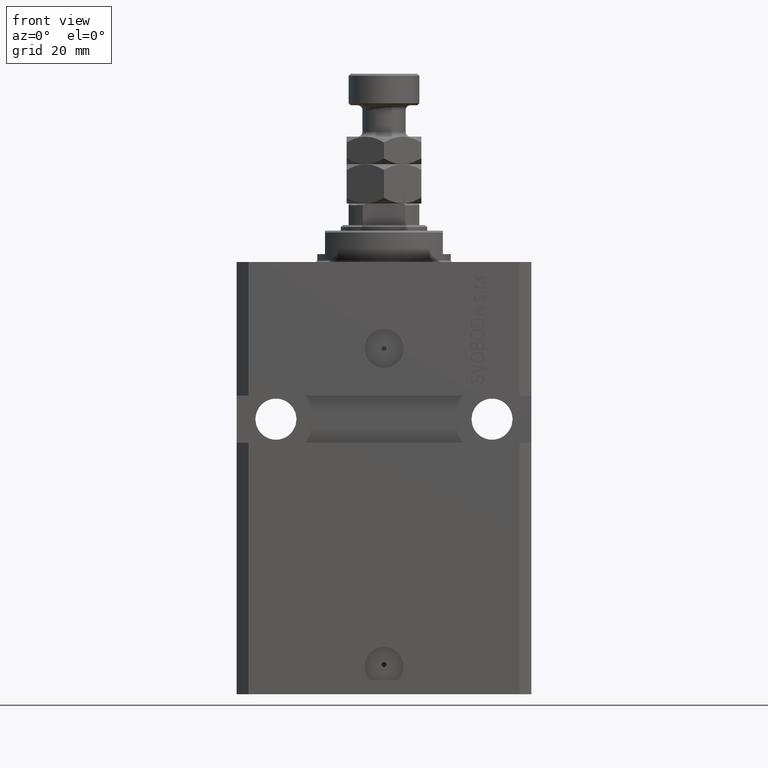
[diagram: clean part render]
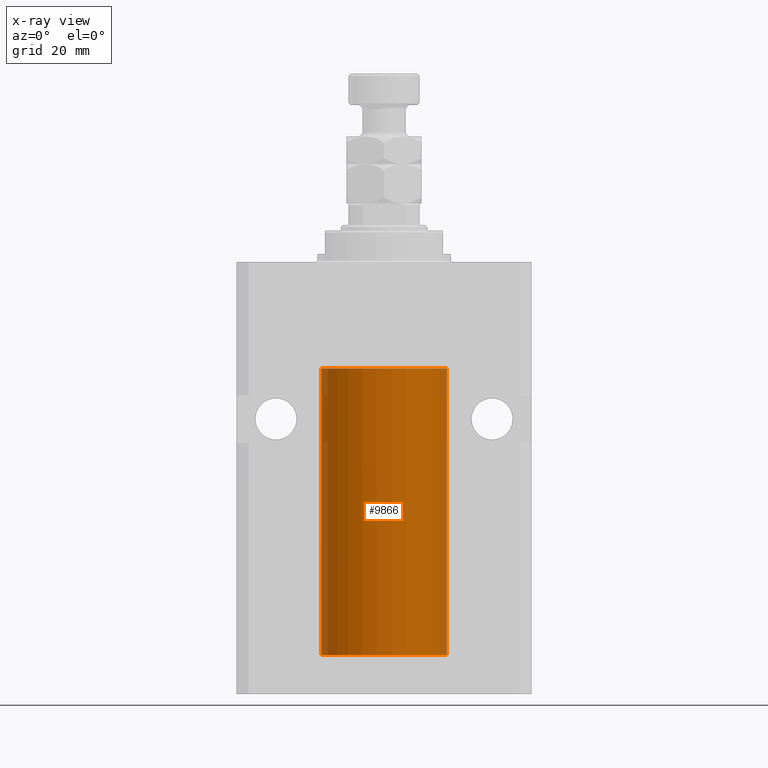
[diagram: x-ray — body ghosted, one internal face saturated and labeled with its STEP entity id]
A machine part, front view, then the same camera in x-ray: the body is ghosted and one INTERNAL B-rep face — a face not visible from any outside direction — is saturated and labeled: STEP entity #9866.
In plain terms, the highlighted cylindrical surface (partial cylindrical patch) has radius 16 mm, axis along (0, 0, 1).
Its self-contained STEP definition (entity closure, byte-faithful):
#1774 = ORIENTED_EDGE ( 'NONE', *, *, #8289, .F. ) ;
#2702 = CARTESIAN_POINT ( 'NONE',  ( -16.00000000000000000, 1.959434878635765131E-15, -27.10000000000000142 ) ) ;
#3000 = DIRECTION ( 'NONE',  ( -0.000000000000000000, -0.000000000000000000, 1.000000000000000000 ) ) ;
#5739 = VERTEX_POINT ( 'NONE', #46092 ) ;
#7216 = VERTEX_POINT ( 'NONE', #23131 ) ;
#7639 = FACE_OUTER_BOUND ( 'NONE', #37353, .T. ) ;
#7840 = CARTESIAN_POINT ( 'NONE',  ( -16.00000000000000000, 1.959434878635765131E-15, -100.0999999999999943 ) ) ;
#8222 = LINE ( 'NONE', #34226, #18745 ) ;
#8289 = EDGE_CURVE ( 'NONE', #17962, #26693, #45509, .T. ) ;
#8900 = VECTOR ( 'NONE', #12414, 1000.000000000000000 ) ;
#9866 = ADVANCED_FACE ( 'NONE', ( #7639 ), #26282, .F. ) ;
#10418 = EDGE_CURVE ( 'NONE', #33028, #16494, #40010, .T. ) ;
#12080 = DIRECTION ( 'NONE',  ( 0.000000000000000000, 0.000000000000000000, 1.000000000000000000 ) ) ;
#12414 = DIRECTION ( 'NONE',  ( -0.000000000000000000, -0.000000000000000000, 1.000000000000000000 ) ) ;
#13316 = CARTESIAN_POINT ( 'NONE',  ( -15.99708815688950381, -0.3263115027449080552, -98.55740969198227219 ) ) ;
#13556 = CARTESIAN_POINT ( 'NONE',  ( -16.00000000000013145, 3.685127046438747128E-13, -98.62500000000343903 ) ) ;
#14039 = CARTESIAN_POINT ( 'NONE',  ( -15.99069874693027948, -0.5575440858643423425, -97.67382425011452085 ) ) ;
#14276 = CARTESIAN_POINT ( 'NONE',  ( -15.99707459521409625, -0.3269651631532106140, -97.44291848928558863 ) ) ;
#15200 = LINE ( 'NONE', #7840, #27138 ) ;
#16250 = EDGE_CURVE ( 'NONE', #17962, #5739, #42546, .T. ) ;
#16494 = VERTEX_POINT ( 'NONE', #43993 ) ;
#16521 = B_SPLINE_CURVE_WITH_KNOTS ( 'NONE', 3,
 ( #13556, #39766, #13316, #31944, #47602, #43915, #14039, #14276, #36335, #32183 ),
 .UNSPECIFIED., .F., .F.,
 ( 4, 2, 2, 2, 4 ),
 ( 0.001954221322144760863, 0.002442665739568255709, 0.002931110156991750121, 0.003419554574415244966, 0.003907998991838739812 ),
 .UNSPECIFIED. ) ;
#17962 = VERTEX_POINT ( 'NONE', #43345 ) ;
#18085 = AXIS2_PLACEMENT_3D ( 'NONE', #28804, #36402, #35260 ) ;
#18745 = VECTOR ( 'NONE', #38132, 1000.000000000000000 ) ;
#19324 = EDGE_CURVE ( 'NONE', #5739, #7216, #16521, .T. ) ;
#20720 = ORIENTED_EDGE ( 'NONE', *, *, #27276, .T. ) ;
#23131 = CARTESIAN_POINT ( 'NONE',  ( -16.00000000000000000, -1.303459030566954747E-14, -97.37500000000000000 ) ) ;
#23218 = CARTESIAN_POINT ( 'NONE',  ( -16.00000000000000000, 1.959434878635765131E-15, -100.0999999999999943 ) ) ;
#26282 = CYLINDRICAL_SURFACE ( 'NONE', #34601, 16.00000000000000000 ) ;
#26423 = ORIENTED_EDGE ( 'NONE', *, *, #10418, .T. ) ;
#26693 = VERTEX_POINT ( 'NONE', #35898 ) ;
#26770 = AXIS2_PLACEMENT_3D ( 'NONE', #32357, #12080, #43359 ) ;
#27138 = VECTOR ( 'NONE', #37745, 1000.000000000000000 ) ;
#27276 = EDGE_CURVE ( 'NONE', #7216, #33028, #15200, .T. ) ;
#28804 = CARTESIAN_POINT ( 'NONE',  ( 0.000000000000000000, 0.000000000000000000, -27.10000000000000142 ) ) ;
#30195 = DIRECTION ( 'NONE',  ( 1.000000000000000000, 0.000000000000000000, 0.000000000000000000 ) ) ;
#30495 = ORIENTED_EDGE ( 'NONE', *, *, #32206, .F. ) ;
#31944 = CARTESIAN_POINT ( 'NONE',  ( -15.99071965633095793, -0.5569502390237154321, -98.32709508218682970 ) ) ;
#32183 = CARTESIAN_POINT ( 'NONE',  ( -16.00000000000000000, -1.303459030566954747E-14, -97.37500000000000000 ) ) ;
#32206 = EDGE_CURVE ( 'NONE', #26693, #16494, #8222, .T. ) ;
#32357 = CARTESIAN_POINT ( 'NONE',  ( 0.000000000000000000, 0.000000000000000000, -100.0999999999999943 ) ) ;
#33028 = VERTEX_POINT ( 'NONE', #2702 ) ;
#34226 = CARTESIAN_POINT ( 'NONE',  ( 16.00000000000000000, 0.000000000000000000, -100.0999999999999943 ) ) ;
#34601 = AXIS2_PLACEMENT_3D ( 'NONE', #41214, #3000, #30195 ) ;
#35260 = DIRECTION ( 'NONE',  ( 1.000000000000000000, 0.000000000000000000, 0.000000000000000000 ) ) ;
#35898 = CARTESIAN_POINT ( 'NONE',  ( 16.00000000000000000, 0.000000000000000000, -100.0999999999999943 ) ) ;
#36335 = CARTESIAN_POINT ( 'NONE',  ( -16.00000000000000000, -0.1651602165840288794, -97.37500000000001421 ) ) ;
#36402 = DIRECTION ( 'NONE',  ( 0.000000000000000000, 0.000000000000000000, 1.000000000000000000 ) ) ;
#36450 = ORIENTED_EDGE ( 'NONE', *, *, #19324, .T. ) ;
#37353 = EDGE_LOOP ( 'NONE', ( #1774, #43471, #36450, #20720, #26423, #30495 ) ) ;
#37745 = DIRECTION ( 'NONE',  ( -0.000000000000000000, -0.000000000000000000, 1.000000000000000000 ) ) ;
#38132 = DIRECTION ( 'NONE',  ( -0.000000000000000000, -0.000000000000000000, 1.000000000000000000 ) ) ;
#39766 = CARTESIAN_POINT ( 'NONE',  ( -16.00000000000000711, -0.1631344205875864539, -98.62500000000012790 ) ) ;
#40010 = CIRCLE ( 'NONE', #18085, 16.00000000000000000 ) ;
#41214 = CARTESIAN_POINT ( 'NONE',  ( 0.000000000000000000, 0.000000000000000000, -100.0999999999999943 ) ) ;
#42546 = LINE ( 'NONE', #23218, #8900 ) ;
#43345 = CARTESIAN_POINT ( 'NONE',  ( -16.00000000000000000, 1.959434878635765131E-15, -100.0999999999999943 ) ) ;
#43359 = DIRECTION ( 'NONE',  ( 1.000000000000000000, 0.000000000000000000, 0.000000000000000000 ) ) ;
#43471 = ORIENTED_EDGE ( 'NONE', *, *, #16250, .T. ) ;
#43915 = CARTESIAN_POINT ( 'NONE',  ( -15.98778295664474491, -0.6251369050462269872, -97.83564325457868449 ) ) ;
#43993 = CARTESIAN_POINT ( 'NONE',  ( 16.00000000000000000, 0.000000000000000000, -27.10000000000000142 ) ) ;
#45509 = CIRCLE ( 'NONE', #26770, 16.00000000000000000 ) ;
#46092 = CARTESIAN_POINT ( 'NONE',  ( -16.00000000000013145, 3.685127046438747128E-13, -98.62500000000343903 ) ) ;
#47602 = CARTESIAN_POINT ( 'NONE',  ( -15.98779367741636648, -0.6248626626677354912, -98.16539631985041581 ) ) ;